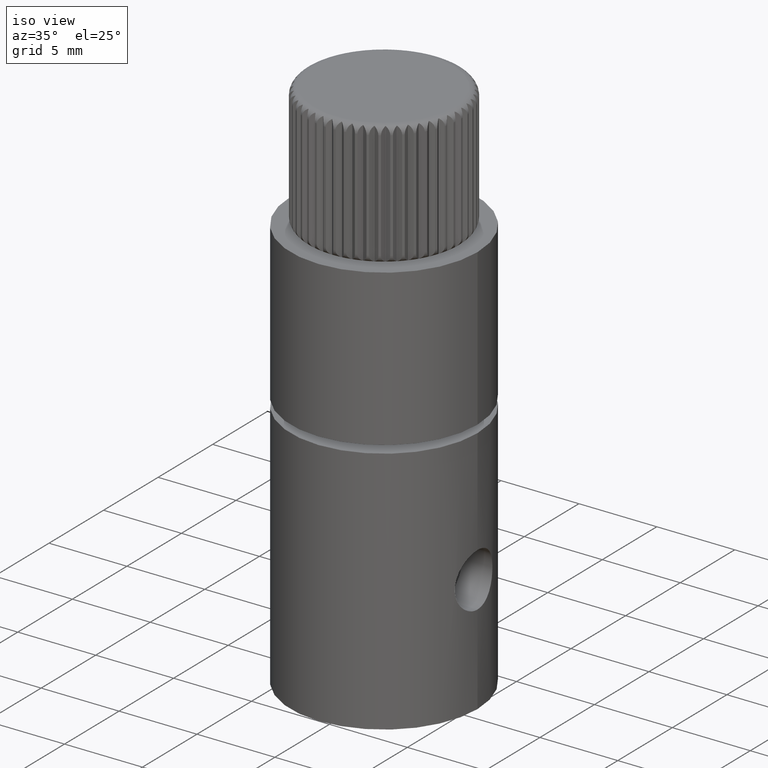
[diagram: clean part render]
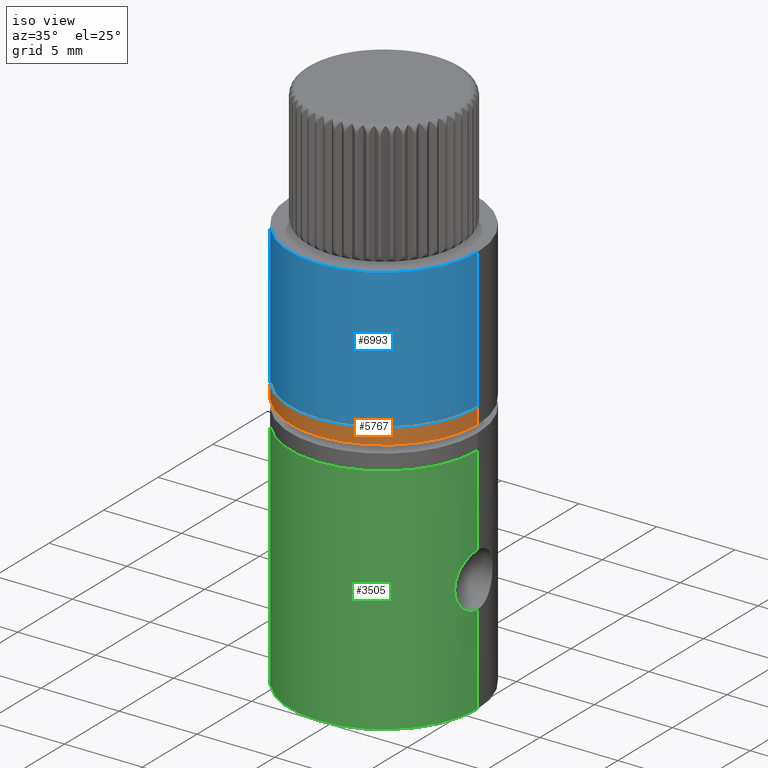
[diagram: same view with three faces highlighted in distinct colors, each labeled with its STEP entity id]
A machine part, iso view with three faces highlighted in distinct colors.
Their STEP definitions:

[orange] entity #5767 — the highlighted cylindrical surface (partial cylindrical patch) has radius 6 mm, axis along (-0, -0, -1).
#172 = DIRECTION ( 'NONE',  ( 1.000000000000000000, 0.0000000000000000000, 0.0000000000000000000 ) ) ;
#244 = VECTOR ( 'NONE', #3150, 1000.000000000000000 ) ;
#271 = AXIS2_PLACEMENT_3D ( 'NONE', #5299, #3576, #172 ) ;
#551 = VERTEX_POINT ( 'NONE', #2926 ) ;
#1281 = DIRECTION ( 'NONE',  ( -1.000000000000000000, 0.0000000000000000000, 0.0000000000000000000 ) ) ;
#1362 = CIRCLE ( 'NONE', #271, 6.000000000000000900 ) ;
#1623 = CARTESIAN_POINT ( 'NONE',  ( 6.000000000000000900, 7.347880794884120700E-016, 16.49999999999999600 ) ) ;
#2155 = EDGE_CURVE ( 'NONE', #8324, #4381, #1362, .T. ) ;
#2182 = AXIS2_PLACEMENT_3D ( 'NONE', #9313, #7510, #10074 ) ;
#2283 = EDGE_CURVE ( 'NONE', #3743, #8324, #4968, .T. ) ;
#2926 = CARTESIAN_POINT ( 'NONE',  ( 6.000000000000000900, 7.347880794884120700E-016, 17.49999999999999600 ) ) ;
#3150 = DIRECTION ( 'NONE',  ( -0.0000000000000000000, -0.0000000000000000000, -1.000000000000000000 ) ) ;
#3576 = DIRECTION ( 'NONE',  ( 0.0000000000000000000, 0.0000000000000000000, 1.000000000000000000 ) ) ;
#3686 = CARTESIAN_POINT ( 'NONE',  ( -6.000000000000000900, 0.0000000000000000000, 17.49999999999999600 ) ) ;
#3701 = AXIS2_PLACEMENT_3D ( 'NONE', #7899, #7158, #1281 ) ;
#3743 = VERTEX_POINT ( 'NONE', #8773 ) ;
#4024 = VECTOR ( 'NONE', #5454, 1000.000000000000000 ) ;
#4381 = VERTEX_POINT ( 'NONE', #1623 ) ;
#4719 = EDGE_CURVE ( 'NONE', #551, #4381, #5755, .T. ) ;
#4800 = ORIENTED_EDGE ( 'NONE', *, *, #8974, .F. ) ;
#4943 = FACE_OUTER_BOUND ( 'NONE', #10375, .T. ) ;
#4968 = LINE ( 'NONE', #3686, #4024 ) ;
#5299 = CARTESIAN_POINT ( 'NONE',  ( 0.0000000000000000000, 0.0000000000000000000, 16.49999999999999600 ) ) ;
#5454 = DIRECTION ( 'NONE',  ( -0.0000000000000000000, -0.0000000000000000000, -1.000000000000000000 ) ) ;
#5588 = CARTESIAN_POINT ( 'NONE',  ( 6.000000000000000900, 7.347880794884120700E-016, 17.49999999999999600 ) ) ;
#5683 = ORIENTED_EDGE ( 'NONE', *, *, #4719, .F. ) ;
#5755 = LINE ( 'NONE', #5588, #244 ) ;
#5767 = ADVANCED_FACE ( 'NONE', ( #4943 ), #10947, .T. ) ;
#6140 = ORIENTED_EDGE ( 'NONE', *, *, #2155, .T. ) ;
#6327 = CARTESIAN_POINT ( 'NONE',  ( -6.000000000000000900, 0.0000000000000000000, 16.49999999999999600 ) ) ;
#6637 = CIRCLE ( 'NONE', #2182, 6.000000000000000900 ) ;
#7158 = DIRECTION ( 'NONE',  ( -0.0000000000000000000, -0.0000000000000000000, -1.000000000000000000 ) ) ;
#7510 = DIRECTION ( 'NONE',  ( 0.0000000000000000000, 0.0000000000000000000, 1.000000000000000000 ) ) ;
#7899 = CARTESIAN_POINT ( 'NONE',  ( 0.0000000000000000000, 0.0000000000000000000, 17.49999999999999600 ) ) ;
#8324 = VERTEX_POINT ( 'NONE', #6327 ) ;
#8773 = CARTESIAN_POINT ( 'NONE',  ( -6.000000000000000900, 0.0000000000000000000, 17.49999999999999600 ) ) ;
#8974 = EDGE_CURVE ( 'NONE', #3743, #551, #6637, .T. ) ;
#9263 = ORIENTED_EDGE ( 'NONE', *, *, #2283, .T. ) ;
#9313 = CARTESIAN_POINT ( 'NONE',  ( 0.0000000000000000000, 0.0000000000000000000, 17.49999999999999600 ) ) ;
#10074 = DIRECTION ( 'NONE',  ( 1.000000000000000000, 0.0000000000000000000, 0.0000000000000000000 ) ) ;
#10375 = EDGE_LOOP ( 'NONE', ( #5683, #4800, #9263, #6140 ) ) ;
#10947 = CYLINDRICAL_SURFACE ( 'NONE', #3701, 6.000000000000000900 ) ;

[blue] entity #6993 — the highlighted cylindrical surface (partial cylindrical patch) has radius 6 mm, axis along (0, 0, 1).
#457 = EDGE_CURVE ( 'NONE', #2749, #10056, #6471, .T. ) ;
#715 = DIRECTION ( 'NONE',  ( 1.000000000000000000, 0.0000000000000000000, 0.0000000000000000000 ) ) ;
#1099 = B_SPLINE_CURVE_WITH_KNOTS ( 'NONE', 3,
 ( #10766, #8166, #3891, #8863, #2171, #9768, #1389, #6479, #10605, #3068, #9809, #8126, #9028, #8907, #4785, #5666 ),
 .UNSPECIFIED., .F., .F.,
 ( 4, 2, 2, 2, 2, 2, 2, 4 ),
 ( 5.800418717898172500E-020, 0.0003129940294259938500, 0.0006259880588519876900, 0.001251976117703982300, 0.001564970147129979800, 0.001877964176555977100, 0.002190958205981974800, 0.002503952235407972000 ),
 .UNSPECIFIED. ) ;
#1389 = CARTESIAN_POINT ( 'NONE',  ( -5.946437910678440600, -0.7999226090912521200, 20.20927051303201000 ) ) ;
#1887 = VERTEX_POINT ( 'NONE', #10492 ) ;
#1912 = EDGE_CURVE ( 'NONE', #2749, #7724, #1099, .T. ) ;
#2154 = DIRECTION ( 'NONE',  ( 0.0000000000000000000, 0.0000000000000000000, 1.000000000000000000 ) ) ;
#2171 = CARTESIAN_POINT ( 'NONE',  ( -5.980244086912517100, -0.4920992179700186500, 20.63930224056101500 ) ) ;
#2212 = ORIENTED_EDGE ( 'NONE', *, *, #457, .F. ) ;
#2569 = DIRECTION ( 'NONE',  ( 0.0000000000000000000, 0.0000000000000000000, 1.000000000000000000 ) ) ;
#2616 = VECTOR ( 'NONE', #2154, 1000.000000000000000 ) ;
#2624 = ORIENTED_EDGE ( 'NONE', *, *, #9011, .T. ) ;
#2749 = VERTEX_POINT ( 'NONE', #10077 ) ;
#2780 = LINE ( 'NONE', #3376, #10267 ) ;
#3068 = CARTESIAN_POINT ( 'NONE',  ( -5.959279652055060200, -0.6990147186902784200, 19.59702982781540800 ) ) ;
#3336 = DIRECTION ( 'NONE',  ( 0.0000000000000000000, 0.0000000000000000000, 1.000000000000000000 ) ) ;
#3376 = CARTESIAN_POINT ( 'NONE',  ( -6.000000000000008000, 7.347880794884129600E-016, 24.58322956960368100 ) ) ;
#3718 = VERTEX_POINT ( 'NONE', #5298 ) ;
#3816 = CARTESIAN_POINT ( 'NONE',  ( 0.0000000000000000000, 0.0000000000000000000, 24.58322956960368100 ) ) ;
#3891 = CARTESIAN_POINT ( 'NONE',  ( -5.997118874621793200, -0.2096949333862096800, 20.77911810972806700 ) ) ;
#4234 = CYLINDRICAL_SURFACE ( 'NONE', #8553, 6.000000000000008000 ) ;
#4325 = ORIENTED_EDGE ( 'NONE', *, *, #6075, .F. ) ;
#4336 = CIRCLE ( 'NONE', #6983, 6.000000000000008000 ) ;
#4785 = CARTESIAN_POINT ( 'NONE',  ( -5.999999999999969800, -0.1044830522471628100, 19.20000000000020900 ) ) ;
#4920 = LINE ( 'NONE', #6337, #2616 ) ;
#5298 = CARTESIAN_POINT ( 'NONE',  ( 6.000000000000008000, 0.0000000000000000000, 17.49999999999999600 ) ) ;
#5558 = CARTESIAN_POINT ( 'NONE',  ( 6.000000000000007100, 0.0000000000000000000, 26.49999999999999600 ) ) ;
#5614 = CARTESIAN_POINT ( 'NONE',  ( -6.000000000001271900, -1.117421425766737000E-012, 19.19999999999045700 ) ) ;
#5666 = CARTESIAN_POINT ( 'NONE',  ( -6.000000000001271900, -1.117421425766737000E-012, 19.19999999999045700 ) ) ;
#5842 = DIRECTION ( 'NONE',  ( 0.0000000000000000000, 0.0000000000000000000, 1.000000000000000000 ) ) ;
#6028 = EDGE_CURVE ( 'NONE', #10056, #8235, #7973, .T. ) ;
#6036 = ORIENTED_EDGE ( 'NONE', *, *, #6028, .F. ) ;
#6075 = EDGE_CURVE ( 'NONE', #1887, #7724, #2780, .T. ) ;
#6337 = CARTESIAN_POINT ( 'NONE',  ( 6.000000000000008000, 0.0000000000000000000, 24.58322956960368100 ) ) ;
#6471 = LINE ( 'NONE', #7980, #10869 ) ;
#6479 = CARTESIAN_POINT ( 'NONE',  ( -5.946422304107004600, -0.8000386132812756800, 19.89580883291285600 ) ) ;
#6983 = AXIS2_PLACEMENT_3D ( 'NONE', #8388, #5842, #715 ) ;
#6993 = ADVANCED_FACE ( 'NONE', ( #8091 ), #4234, .T. ) ;
#7019 = EDGE_LOOP ( 'NONE', ( #4325, #2624, #10847, #6036, #2212, #7095 ) ) ;
#7095 = ORIENTED_EDGE ( 'NONE', *, *, #1912, .T. ) ;
#7586 = DIRECTION ( 'NONE',  ( 1.000000000000000000, 0.0000000000000000000, 0.0000000000000000000 ) ) ;
#7724 = VERTEX_POINT ( 'NONE', #5614 ) ;
#7973 = CIRCLE ( 'NONE', #9771, 6.000000000000007100 ) ;
#7980 = CARTESIAN_POINT ( 'NONE',  ( -6.000000000000008000, 7.347880794884129600E-016, 24.58322956960368100 ) ) ;
#8091 = FACE_OUTER_BOUND ( 'NONE', #7019, .T. ) ;
#8110 = EDGE_CURVE ( 'NONE', #3718, #8235, #4920, .T. ) ;
#8126 = CARTESIAN_POINT ( 'NONE',  ( -5.980335152853286700, -0.4911286982665946700, 19.35974493293917600 ) ) ;
#8166 = CARTESIAN_POINT ( 'NONE',  ( -6.000000000000010700, -0.1058425498817388800, 20.79999999999999700 ) ) ;
#8235 = VERTEX_POINT ( 'NONE', #5558 ) ;
#8388 = CARTESIAN_POINT ( 'NONE',  ( 0.0000000000000000000, 0.0000000000000000000, 17.49999999999999600 ) ) ;
#8553 = AXIS2_PLACEMENT_3D ( 'NONE', #3816, #9775, #8866 ) ;
#8566 = CARTESIAN_POINT ( 'NONE',  ( 0.0000000000000000000, 0.0000000000000000000, 26.49999999999999600 ) ) ;
#8795 = DIRECTION ( 'NONE',  ( 0.0000000000000000000, 0.0000000000000000000, 1.000000000000000000 ) ) ;
#8863 = CARTESIAN_POINT ( 'NONE',  ( -5.987208053260036200, -0.4034185028118766900, 20.69874924370842400 ) ) ;
#8866 = DIRECTION ( 'NONE',  ( 1.000000000000000000, 0.0000000000000000000, 0.0000000000000000000 ) ) ;
#8907 = CARTESIAN_POINT ( 'NONE',  ( -5.997128800882994600, -0.2094045615967244400, 19.22080814156286600 ) ) ;
#9011 = EDGE_CURVE ( 'NONE', #1887, #3718, #4336, .T. ) ;
#9028 = CARTESIAN_POINT ( 'NONE',  ( -5.987229185554279600, -0.4031014815711362900, 19.30107266598923500 ) ) ;
#9768 = CARTESIAN_POINT ( 'NONE',  ( -5.959299862060675000, -0.7132103978202422000, 20.41809916155497400 ) ) ;
#9771 = AXIS2_PLACEMENT_3D ( 'NONE', #8566, #3336, #7586 ) ;
#9775 = DIRECTION ( 'NONE',  ( 0.0000000000000000000, 0.0000000000000000000, 1.000000000000000000 ) ) ;
#9809 = CARTESIAN_POINT ( 'NONE',  ( -5.966203189200483000, -0.6403401001715805000, 19.50898217418269100 ) ) ;
#9907 = CARTESIAN_POINT ( 'NONE',  ( -5.999999999999999100, 7.347880794884120700E-016, 26.49999999999999600 ) ) ;
#10056 = VERTEX_POINT ( 'NONE', #9907 ) ;
#10077 = CARTESIAN_POINT ( 'NONE',  ( -6.000000000000010700, 5.969670168252636100E-017, 20.79999999999999700 ) ) ;
#10267 = VECTOR ( 'NONE', #2569, 1000.000000000000000 ) ;
#10492 = CARTESIAN_POINT ( 'NONE',  ( -6.000000000000000000, 7.347880794884120700E-016, 17.49999999999999600 ) ) ;
#10605 = CARTESIAN_POINT ( 'NONE',  ( -5.949315457779255700, -0.7792824469805075300, 19.79089379625607500 ) ) ;
#10766 = CARTESIAN_POINT ( 'NONE',  ( -6.000000000000010700, 5.969670168252636100E-017, 20.79999999999999700 ) ) ;
#10847 = ORIENTED_EDGE ( 'NONE', *, *, #8110, .T. ) ;
#10869 = VECTOR ( 'NONE', #8795, 1000.000000000000000 ) ;

[green] entity #3505 — the highlighted cylindrical surface (partial cylindrical patch) has radius 6 mm, axis along (-0, -0, -1).
#212 = CARTESIAN_POINT ( 'NONE',  ( 5.999999999999996400, 7.347880794884115800E-016, -1.657192075796718000 ) ) ;
#214 = EDGE_CURVE ( 'NONE', #5294, #997, #9367, .T. ) ;
#376 = CARTESIAN_POINT ( 'NONE',  ( 5.999999999999996400, 7.347791682473875600E-016, 9.227199999999998100 ) ) ;
#399 = CARTESIAN_POINT ( 'NONE',  ( -5.944446054467600300, -0.8295327278471170700, 5.080035484268275800 ) ) ;
#466 = CARTESIAN_POINT ( 'NONE',  ( -5.999999999999996400, 6.355360064160834200E-021, 4.947300000000001100 ) ) ;
#524 = CARTESIAN_POINT ( 'NONE',  ( 5.951516606819510000, -0.7683868962671895900, 5.949027354265493500 ) ) ;
#574 = ORIENTED_EDGE ( 'NONE', *, *, #8018, .F. ) ;
#754 = CARTESIAN_POINT ( 'NONE',  ( 0.0000000000000000000, 0.0000000000000000000, -1.657192075796718000 ) ) ;
#776 = CARTESIAN_POINT ( 'NONE',  ( 5.999999999999998200, 7.347880794884117800E-016, 15.00000000000000000 ) ) ;
#833 = EDGE_LOOP ( 'NONE', ( #10997, #1727, #9455, #7150, #6976, #574, #3298, #8717 ) ) ;
#938 = CIRCLE ( 'NONE', #2150, 5.999999999999998200 ) ;
#997 = VERTEX_POINT ( 'NONE', #376 ) ;
#1024 = CARTESIAN_POINT ( 'NONE',  ( -5.999999999999996400, 6.355360064160834200E-021, 4.947300000000001100 ) ) ;
#1237 = CARTESIAN_POINT ( 'NONE',  ( 5.807957198713734400, -1.508535126585994500, 6.629180570683155700 ) ) ;
#1255 = CARTESIAN_POINT ( 'NONE',  ( -5.758518791172618600, -1.689542758155515800, 5.579264974860665300 ) ) ;
#1294 = CARTESIAN_POINT ( 'NONE',  ( -5.862064873179316600, -1.286901026110598900, 5.289241800215278600 ) ) ;
#1329 = CARTESIAN_POINT ( 'NONE',  ( -5.545428062178277000, -2.291961602034463800, 8.636197076764878100 ) ) ;
#1371 = CARTESIAN_POINT ( 'NONE',  ( -5.684731597411351700, -1.923258054761733300, 9.186666060781323800 ) ) ;
#1451 = DIRECTION ( 'NONE',  ( -0.0000000000000000000, -0.0000000000000000000, -1.000000000000000000 ) ) ;
#1727 = ORIENTED_EDGE ( 'NONE', *, *, #3917, .T. ) ;
#1812 = AXIS2_PLACEMENT_3D ( 'NONE', #4460, #5289, #6160 ) ;
#1845 = B_SPLINE_CURVE_WITH_KNOTS ( 'NONE', 3,
 ( #7964, #2955, #3737, #8079, #3812, #4629, #5538, #8783, #3696, #9694, #4553, #2912, #4590, #8862, #10564, #9733, #5463, #10604, #5505, #1237, #6591, #2168, #3889, #5663, #524, #7373, #7335, #8162, #9069, #3996 ),
 .UNSPECIFIED., .F., .F.,
 ( 4, 2, 2, 2, 2, 2, 2, 2, 2, 2, 2, 2, 2, 2, 4 ),
 ( 0.005428885378665155300, 0.006107312083298267700, 0.006446525435614822700, 0.006785738787931377600, 0.007124952140247932600, 0.007464165492564488400, 0.007803378844881043300, 0.008142592197197599100, 0.008481805549514154900, 0.008821018901830709000, 0.009499445606463820600, 0.009838658958780378100, 0.01017787231109693400, 0.01051708566341349000, 0.01085629901573004600 ),
 .UNSPECIFIED. ) ;
#2109 = CARTESIAN_POINT ( 'NONE',  ( -5.545474918218021200, -2.291847686021217800, 6.363586902846903600 ) ) ;
#2150 = AXIS2_PLACEMENT_3D ( 'NONE', #8225, #1451, #8265 ) ;
#2153 = CARTESIAN_POINT ( 'NONE',  ( -5.999999999999996400, -0.1681667988870573200, 4.947300000000002000 ) ) ;
#2168 = CARTESIAN_POINT ( 'NONE',  ( 5.890731690207304400, -1.142722605208084100, 6.200021611933410200 ) ) ;
#2188 = CARTESIAN_POINT ( 'NONE',  ( -5.999999999999994700, -0.1707099958356989900, 10.05269999999999800 ) ) ;
#2319 = EDGE_CURVE ( 'NONE', #5480, #4581, #3756, .T. ) ;
#2703 = CARTESIAN_POINT ( 'NONE',  ( -5.999999999999998200, 0.0000000000000000000, 15.00000000000000000 ) ) ;
#2892 = CIRCLE ( 'NONE', #1812, 5.999999999999994700 ) ;
#2912 = CARTESIAN_POINT ( 'NONE',  ( 5.772105946926284800, -1.638553592039673700, 8.058008221229521000 ) ) ;
#2936 = VERTEX_POINT ( 'NONE', #2703 ) ;
#2941 = FACE_OUTER_BOUND ( 'NONE', #833, .T. ) ;
#2955 = CARTESIAN_POINT ( 'NONE',  ( 5.999999999999995600, -0.2261548625626628700, 9.227199999999994500 ) ) ;
#3008 = CARTESIAN_POINT ( 'NONE',  ( -5.468608697402983100, -2.468938926292759500, 6.830004280124026800 ) ) ;
#3046 = CARTESIAN_POINT ( 'NONE',  ( -5.684531461303394400, -1.923849127498258500, 5.814004061969026100 ) ) ;
#3298 = ORIENTED_EDGE ( 'NONE', *, *, #2319, .F. ) ;
#3335 = VERTEX_POINT ( 'NONE', #1024 ) ;
#3505 = ADVANCED_FACE ( 'NONE', ( #2941 ), #7089, .T. ) ;
#3635 = CARTESIAN_POINT ( 'NONE',  ( -5.795073105684716500, -1.561104265620017400, 5.473545080495772400 ) ) ;
#3696 = CARTESIAN_POINT ( 'NONE',  ( 5.841148006978781600, -1.372993291421249500, 8.553880610734310600 ) ) ;
#3737 = CARTESIAN_POINT ( 'NONE',  ( 5.986424716452443600, -0.4545178208296856100, 9.181500946535484400 ) ) ;
#3756 = LINE ( 'NONE', #212, #10168 ) ;
#3773 = DIRECTION ( 'NONE',  ( -0.0000000000000000000, -0.0000000000000000000, -1.000000000000000000 ) ) ;
#3812 = CARTESIAN_POINT ( 'NONE',  ( 5.937661236842082200, -0.8678428709936488700, 8.997576094440992400 ) ) ;
#3818 = CARTESIAN_POINT ( 'NONE',  ( -5.999999999999994700, 0.0000000000000000000, 0.0000000000000000000 ) ) ;
#3831 = CARTESIAN_POINT ( 'NONE',  ( -5.647838450690718700, -2.027712452736806000, 9.059487463348162400 ) ) ;
#3889 = CARTESIAN_POINT ( 'NONE',  ( 5.907326394878676700, -1.054757920502443500, 6.127617365510638500 ) ) ;
#3917 = EDGE_CURVE ( 'NONE', #5294, #2936, #938, .T. ) ;
#3996 = CARTESIAN_POINT ( 'NONE',  ( 5.999999999999996400, -1.155131234345146100E-016, 5.772800000000001900 ) ) ;
#4204 = VECTOR ( 'NONE', #3773, 1000.000000000000000 ) ;
#4208 = EDGE_CURVE ( 'NONE', #3335, #7405, #9154, .T. ) ;
#4460 = CARTESIAN_POINT ( 'NONE',  ( 0.0000000000000000000, 0.0000000000000000000, 0.0000000000000000000 ) ) ;
#4514 = CARTESIAN_POINT ( 'NONE',  ( -5.999999999999996400, 0.0000000000000000000, -1.657192075796718000 ) ) ;
#4524 = CARTESIAN_POINT ( 'NONE',  ( 5.999999999999994700, 7.347880794884114800E-016, 0.0000000000000000000 ) ) ;
#4553 = CARTESIAN_POINT ( 'NONE',  ( 5.796261876939932600, -1.550939454156960300, 8.268646770945643700 ) ) ;
#4581 = VERTEX_POINT ( 'NONE', #4524 ) ;
#4590 = CARTESIAN_POINT ( 'NONE',  ( 5.762554821270577500, -1.671375423169776200, 7.949949759482335800 ) ) ;
#4629 = CARTESIAN_POINT ( 'NONE',  ( 5.907307935459299700, -1.054838929832938400, 8.872297431129464200 ) ) ;
#4727 = CARTESIAN_POINT ( 'NONE',  ( -5.999999999999996400, 3.887585098853531700E-017, 10.05270000000000000 ) ) ;
#4767 = CARTESIAN_POINT ( 'NONE',  ( -5.992571152948290300, -0.3409625278992493600, 10.03536845291904300 ) ) ;
#4861 = VECTOR ( 'NONE', #5577, 1000.000000000000000 ) ;
#5289 = DIRECTION ( 'NONE',  ( -0.0000000000000000000, -0.0000000000000000000, -1.000000000000000000 ) ) ;
#5294 = VERTEX_POINT ( 'NONE', #776 ) ;
#5463 = CARTESIAN_POINT ( 'NONE',  ( 5.749399366871793800, -1.716082580037926000, 7.273879313617793100 ) ) ;
#5480 = VERTEX_POINT ( 'NONE', #10792 ) ;
#5505 = CARTESIAN_POINT ( 'NONE',  ( 5.772191589221169000, -1.638235489752004600, 6.941340410650735900 ) ) ;
#5538 = CARTESIAN_POINT ( 'NONE',  ( 5.890997361577779800, -1.141390950793632000, 8.801206852798921800 ) ) ;
#5557 = CARTESIAN_POINT ( 'NONE',  ( -5.795681131525790300, -1.571769620818372200, 9.538569148266097000 ) ) ;
#5577 = DIRECTION ( 'NONE',  ( -0.0000000000000000000, -0.0000000000000000000, -1.000000000000000000 ) ) ;
#5643 = CARTESIAN_POINT ( 'NONE',  ( -5.578312231576187900, -2.211802959606464100, 6.214935228368260000 ) ) ;
#5663 = CARTESIAN_POINT ( 'NONE',  ( 5.937749056059327100, -0.8672690204080466500, 6.002070491461275000 ) ) ;
#5697 = CARTESIAN_POINT ( 'NONE',  ( 5.999999999999996400, 7.347880794884115800E-016, -1.657192075796718000 ) ) ;
#6160 = DIRECTION ( 'NONE',  ( -1.000000000000000000, 0.0000000000000000000, 0.0000000000000000000 ) ) ;
#6420 = CARTESIAN_POINT ( 'NONE',  ( -5.866953627049563900, -1.295423748972544600, 9.725226282927163600 ) ) ;
#6461 = CARTESIAN_POINT ( 'NONE',  ( -5.429917367016516400, -2.552645175308240400, 7.330871673356375200 ) ) ;
#6498 = CARTESIAN_POINT ( 'NONE',  ( -5.578256198018157100, -2.211957220507774700, 8.784859600877677400 ) ) ;
#6591 = CARTESIAN_POINT ( 'NONE',  ( 5.841344997310582900, -1.380154997186718200, 6.437668737485535300 ) ) ;
#6976 = ORIENTED_EDGE ( 'NONE', *, *, #9815, .T. ) ;
#7089 = CYLINDRICAL_SURFACE ( 'NONE', #11023, 5.999999999999996400 ) ;
#7099 = DIRECTION ( 'NONE',  ( -0.0000000000000000000, -0.0000000000000000000, -1.000000000000000000 ) ) ;
#7150 = ORIENTED_EDGE ( 'NONE', *, *, #4208, .F. ) ;
#7242 = CARTESIAN_POINT ( 'NONE',  ( -5.647692592610988900, -2.028104549682636600, 5.941072248316348100 ) ) ;
#7274 = CARTESIAN_POINT ( 'NONE',  ( -5.944509674879925300, -0.8292295298027918500, 9.920129134841985800 ) ) ;
#7315 = CARTESIAN_POINT ( 'NONE',  ( -5.964816404085396200, -0.6694249279293729100, 9.969052227749612500 ) ) ;
#7335 = CARTESIAN_POINT ( 'NONE',  ( 5.984139870573226700, -0.4499573175649861400, 5.828592013085664500 ) ) ;
#7354 = CARTESIAN_POINT ( 'NONE',  ( -5.999999999999996400, 3.887585098853531700E-017, 10.05270000000000000 ) ) ;
#7373 = CARTESIAN_POINT ( 'NONE',  ( 5.974707320824017600, -0.5602149356233214700, 5.862290075722693700 ) ) ;
#7405 = VERTEX_POINT ( 'NONE', #4727 ) ;
#7449 = VECTOR ( 'NONE', #8073, 1000.000000000000000 ) ;
#7515 = DIRECTION ( 'NONE',  ( -1.000000000000000000, 0.0000000000000000000, 0.0000000000000000000 ) ) ;
#7532 = EDGE_CURVE ( 'NONE', #2936, #7405, #9971, .T. ) ;
#7964 = CARTESIAN_POINT ( 'NONE',  ( 5.999999999999996400, 7.347791682473875600E-016, 9.227199999999998100 ) ) ;
#8018 = EDGE_CURVE ( 'NONE', #4581, #8294, #2892, .T. ) ;
#8073 = DIRECTION ( 'NONE',  ( -0.0000000000000000000, -0.0000000000000000000, -1.000000000000000000 ) ) ;
#8079 = CARTESIAN_POINT ( 'NONE',  ( 5.951725821776138400, -0.7667637029778022800, 9.051771978886954200 ) ) ;
#8100 = CARTESIAN_POINT ( 'NONE',  ( -5.992715134390394400, -0.3389686367318738800, 4.964289471930388100 ) ) ;
#8162 = CARTESIAN_POINT ( 'NONE',  ( 5.996711971617041400, -0.2276776398316915600, 5.784124381351618100 ) ) ;
#8225 = CARTESIAN_POINT ( 'NONE',  ( 0.0000000000000000000, 0.0000000000000000000, 15.00000000000000000 ) ) ;
#8265 = DIRECTION ( 'NONE',  ( -1.000000000000000000, 0.0000000000000000000, 0.0000000000000000000 ) ) ;
#8294 = VERTEX_POINT ( 'NONE', #3818 ) ;
#8461 = DIRECTION ( 'NONE',  ( -0.0000000000000000000, -0.0000000000000000000, -1.000000000000000000 ) ) ;
#8717 = ORIENTED_EDGE ( 'NONE', *, *, #8849, .F. ) ;
#8783 = CARTESIAN_POINT ( 'NONE',  ( 5.857872495864960200, -1.300750951896163100, 8.641910476992697100 ) ) ;
#8849 = EDGE_CURVE ( 'NONE', #997, #5480, #1845, .T. ) ;
#8862 = CARTESIAN_POINT ( 'NONE',  ( 5.749511333668008800, -1.715707812346797700, 7.728686015939606700 ) ) ;
#8930 = CARTESIAN_POINT ( 'NONE',  ( -5.490739542729993900, -2.420048999174853500, 6.670926188512334300 ) ) ;
#8968 = CARTESIAN_POINT ( 'NONE',  ( -5.438070872043938100, -2.535493186285945600, 7.159664887627935000 ) ) ;
#9005 = LINE ( 'NONE', #4514, #4204 ) ;
#9069 = CARTESIAN_POINT ( 'NONE',  ( 5.999999999999997300, -0.1147435631984425300, 5.772800000000002800 ) ) ;
#9154 = B_SPLINE_CURVE_WITH_KNOTS ( 'NONE', 3,
 ( #466, #2153, #8100, #9903, #399, #9598, #1294, #3635, #1255, #3046, #7242, #5643, #2109, #8930, #3008, #8968, #6461, #9787, #10669, #1329, #6498, #3831, #1371, #5557, #6420, #7274, #7315, #4767, #2188, #7354 ),
 .UNSPECIFIED., .F., .F.,
 ( 4, 2, 2, 2, 2, 2, 2, 2, 2, 2, 2, 2, 2, 2, 4 ),
 ( 0.008078412423107554300, 0.008582864381416721900, 0.009087316339725889600, 0.009591768298035057200, 0.01009622025634422300, 0.01060067221465339100, 0.01110512417296255800, 0.01160957613127172600, 0.01211402808958089400, 0.01312293200619922900, 0.01362738396450839700, 0.01413183592281756400, 0.01514073983943589800, 0.01564519179774506400, 0.01614964375605423100 ),
 .UNSPECIFIED. ) ;
#9367 = LINE ( 'NONE', #5697, #4861 ) ;
#9455 = ORIENTED_EDGE ( 'NONE', *, *, #7532, .T. ) ;
#9598 = CARTESIAN_POINT ( 'NONE',  ( -5.893032328816365100, -1.138742030738342000, 5.209231702812334500 ) ) ;
#9694 = CARTESIAN_POINT ( 'NONE',  ( 5.810435935567634000, -1.497649777613003300, 8.367652040616055900 ) ) ;
#9733 = CARTESIAN_POINT ( 'NONE',  ( 5.746018230813116500, -1.727215820746433200, 7.386383466035223200 ) ) ;
#9787 = CARTESIAN_POINT ( 'NONE',  ( -5.429840234575292100, -2.552809245046609100, 7.835768098537398500 ) ) ;
#9815 = EDGE_CURVE ( 'NONE', #3335, #8294, #9005, .T. ) ;
#9903 = CARTESIAN_POINT ( 'NONE',  ( -5.964820555114236800, -0.6696642172956873700, 5.030935915184726600 ) ) ;
#9971 = LINE ( 'NONE', #10640, #7449 ) ;
#10168 = VECTOR ( 'NONE', #7099, 1000.000000000000000 ) ;
#10564 = CARTESIAN_POINT ( 'NONE',  ( 5.746027751991090500, -1.727184145834395500, 7.614097040300154400 ) ) ;
#10604 = CARTESIAN_POINT ( 'NONE',  ( 5.762429188576417600, -1.671808107390893900, 7.051527438540924600 ) ) ;
#10640 = CARTESIAN_POINT ( 'NONE',  ( -5.999999999999996400, 0.0000000000000000000, -1.657192075796718000 ) ) ;
#10669 = CARTESIAN_POINT ( 'NONE',  ( -5.463299408580196500, -2.484310987816572300, 8.174903086088374200 ) ) ;
#10792 = CARTESIAN_POINT ( 'NONE',  ( 5.999999999999996400, -1.155131234345146100E-016, 5.772800000000001900 ) ) ;
#10997 = ORIENTED_EDGE ( 'NONE', *, *, #214, .F. ) ;
#11023 = AXIS2_PLACEMENT_3D ( 'NONE', #754, #8461, #7515 ) ;